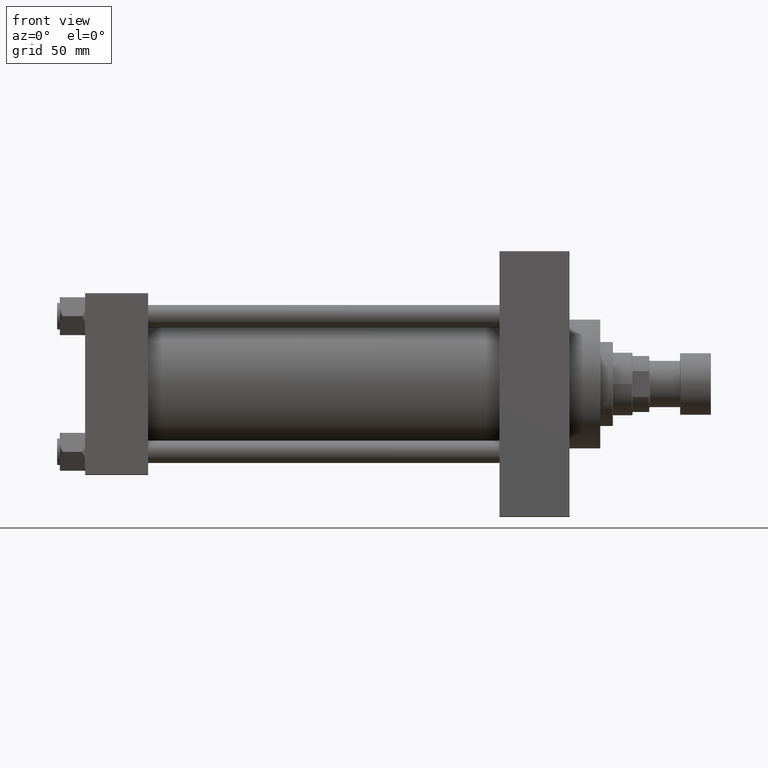
[diagram: clean part render]
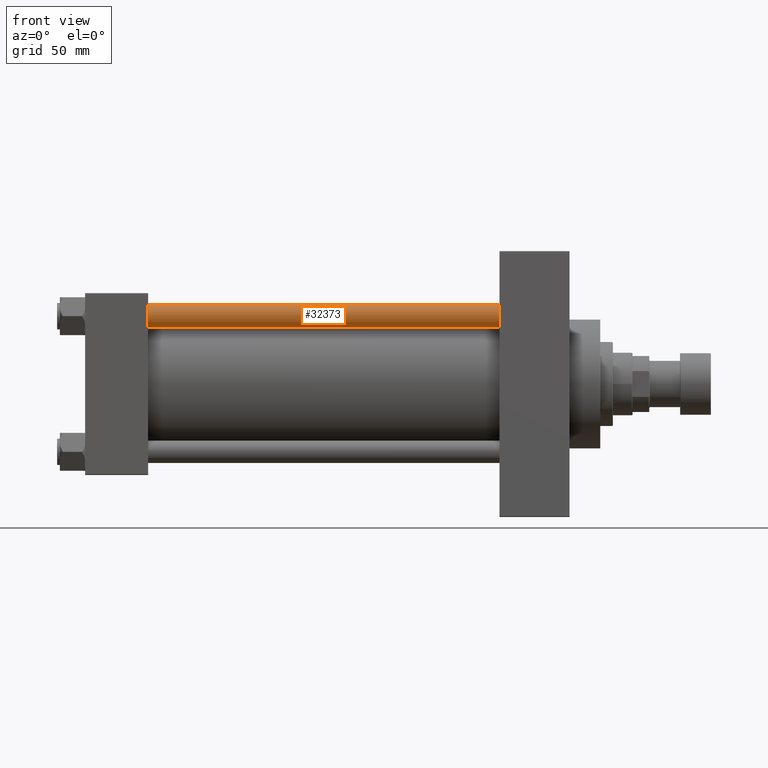
[diagram: same view with one face highlighted and labeled with its STEP entity id]
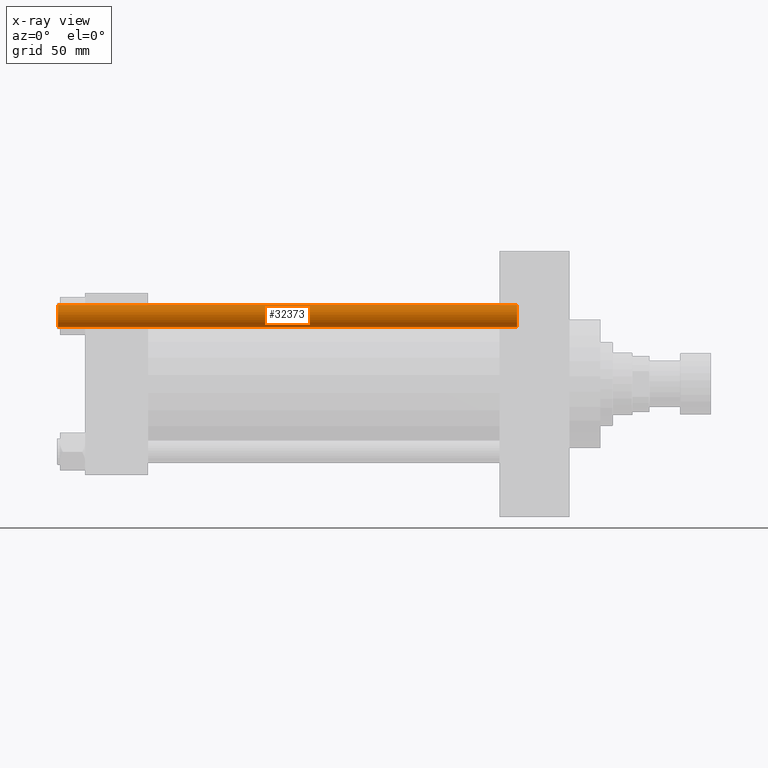
[diagram: x-ray of the same camera — body ghosted, the highlighted face saturated]
A machine part, front view. The second image highlights one B-rep face of the part: STEP entity #32373.
The next image is the same camera in x-ray: the body ghosted, the highlighted face saturated — about 0% of this face is hidden behind the body in this view.
In plain terms, the highlighted cylindrical surface (edge-blend (fillet) strip) has radius 8 mm, axis along (1, 0, 0).
Its self-contained STEP definition (entity closure, byte-faithful):
#2704 = VECTOR ( 'NONE', #8622, 1000.000000000000000 ) ;
#3127 = AXIS2_PLACEMENT_3D ( 'NONE', #28153, #43674, #28396 ) ;
#6954 = EDGE_CURVE ( 'NONE', #19792, #7284, #45718, .T. ) ;
#7284 = VERTEX_POINT ( 'NONE', #29494 ) ;
#7393 = CARTESIAN_POINT ( 'NONE',  ( 8.000000000000000000, 9.797174393178825657E-16, 0.4999999999998894218 ) ) ;
#7526 = AXIS2_PLACEMENT_3D ( 'NONE', #10976, #31069, #37698 ) ;
#8622 = DIRECTION ( 'NONE',  ( -0.000000000000000000, -0.000000000000000000, -1.000000000000000000 ) ) ;
#10976 = CARTESIAN_POINT ( 'NONE',  ( 0.000000000000000000, 0.000000000000000000, 328.5000000000000000 ) ) ;
#11011 = ORIENTED_EDGE ( 'NONE', *, *, #6954, .T. ) ;
#11386 = EDGE_LOOP ( 'NONE', ( #11011, #43059, #27607, #44127 ) ) ;
#12875 = CYLINDRICAL_SURFACE ( 'NONE', #3127, 8.000000000000000000 ) ;
#14283 = EDGE_CURVE ( 'NONE', #19792, #20224, #17003, .T. ) ;
#14959 = CIRCLE ( 'NONE', #20625, 8.000000000000000000 ) ;
#16520 = EDGE_CURVE ( 'NONE', #49883, #20224, #14959, .T. ) ;
#17003 = LINE ( 'NONE', #42972, #2704 ) ;
#19792 = VERTEX_POINT ( 'NONE', #43001 ) ;
#20224 = VERTEX_POINT ( 'NONE', #48502 ) ;
#20625 = AXIS2_PLACEMENT_3D ( 'NONE', #39854, #40609, #36036 ) ;
#20810 = LINE ( 'NONE', #44956, #34105 ) ;
#27607 = ORIENTED_EDGE ( 'NONE', *, *, #16520, .T. ) ;
#28153 = CARTESIAN_POINT ( 'NONE',  ( 0.000000000000000000, 0.000000000000000000, 329.0000000000000000 ) ) ;
#28396 = DIRECTION ( 'NONE',  ( -1.000000000000000000, 0.000000000000000000, 0.000000000000000000 ) ) ;
#29494 = CARTESIAN_POINT ( 'NONE',  ( 8.000000000000000000, 9.797174393178825657E-16, 328.5000000000000000 ) ) ;
#31069 = DIRECTION ( 'NONE',  ( 0.000000000000000000, 0.000000000000000000, -1.000000000000000000 ) ) ;
#32373 = ADVANCED_FACE ( 'NONE', ( #39110 ), #12875, .T. ) ;
#34105 = VECTOR ( 'NONE', #40633, 1000.000000000000000 ) ;
#36036 = DIRECTION ( 'NONE',  ( 1.000000000000000000, 0.000000000000000000, 0.000000000000000000 ) ) ;
#36951 = EDGE_CURVE ( 'NONE', #7284, #49883, #20810, .T. ) ;
#37698 = DIRECTION ( 'NONE',  ( 1.000000000000000000, 0.000000000000000000, 0.000000000000000000 ) ) ;
#39110 = FACE_OUTER_BOUND ( 'NONE', #11386, .T. ) ;
#39854 = CARTESIAN_POINT ( 'NONE',  ( 0.000000000000000000, 0.000000000000000000, 0.4999999999998894218 ) ) ;
#40609 = DIRECTION ( 'NONE',  ( -0.000000000000000000, -0.000000000000000000, 1.000000000000000000 ) ) ;
#40633 = DIRECTION ( 'NONE',  ( -0.000000000000000000, -0.000000000000000000, -1.000000000000000000 ) ) ;
#42972 = CARTESIAN_POINT ( 'NONE',  ( -8.000000000000000000, 0.000000000000000000, 329.0000000000000000 ) ) ;
#43001 = CARTESIAN_POINT ( 'NONE',  ( -8.000000000000000000, 0.000000000000000000, 328.5000000000000000 ) ) ;
#43059 = ORIENTED_EDGE ( 'NONE', *, *, #36951, .T. ) ;
#43674 = DIRECTION ( 'NONE',  ( -0.000000000000000000, -0.000000000000000000, -1.000000000000000000 ) ) ;
#44127 = ORIENTED_EDGE ( 'NONE', *, *, #14283, .F. ) ;
#44956 = CARTESIAN_POINT ( 'NONE',  ( 8.000000000000000000, 9.797174393178825657E-16, 329.0000000000000000 ) ) ;
#45718 = CIRCLE ( 'NONE', #7526, 8.000000000000000000 ) ;
#48502 = CARTESIAN_POINT ( 'NONE',  ( -8.000000000000000000, 0.000000000000000000, 0.4999999999998894218 ) ) ;
#49883 = VERTEX_POINT ( 'NONE', #7393 ) ;